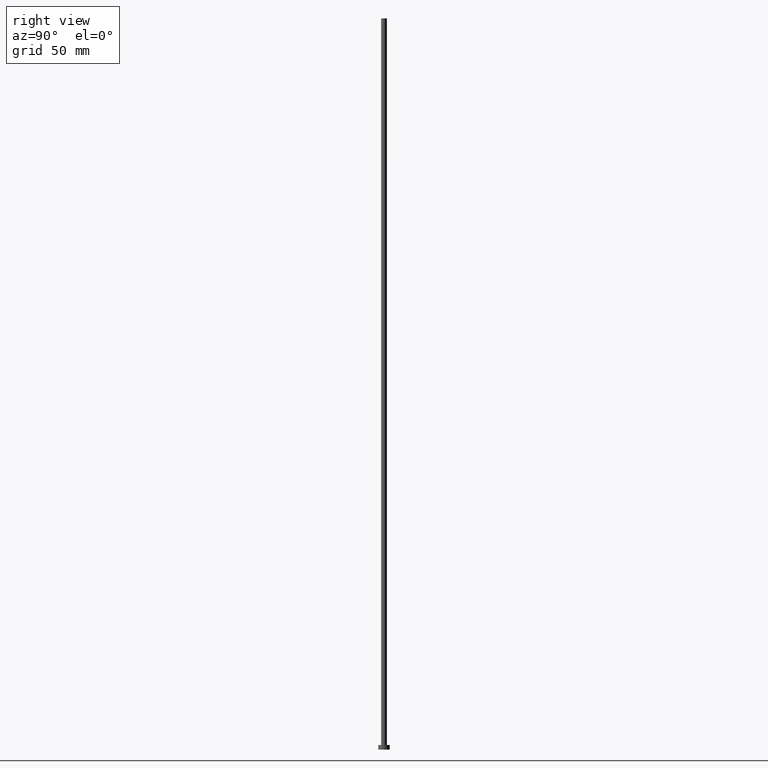
[diagram: clean part render]
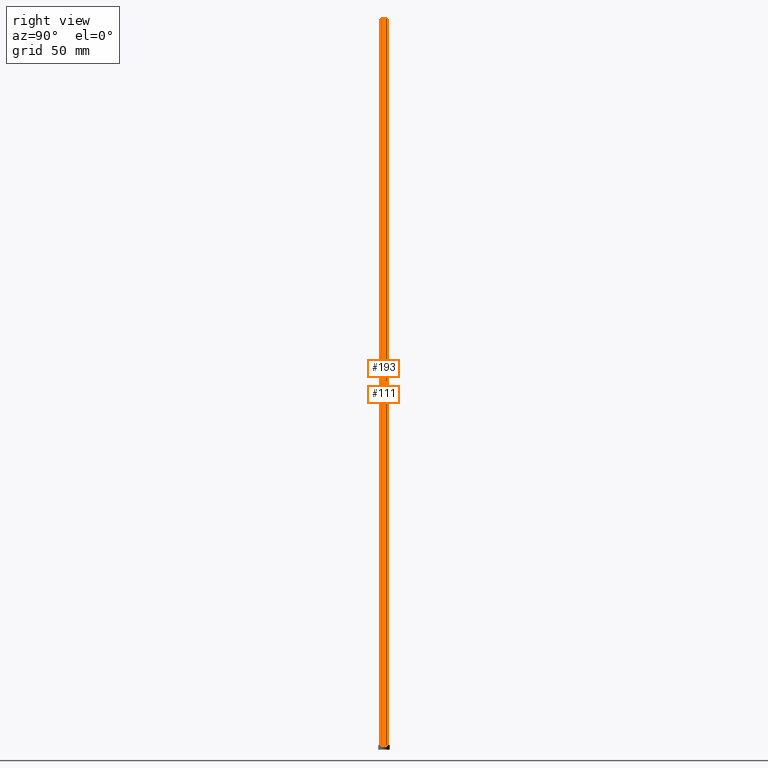
[diagram: same view with one multi-face feature highlighted, each face labeled with its STEP entity id]
A machine part, right view. The highlighted faces form ONE feature: a constant-radius fillet chain: 2 tangent blend faces with common blend radius 1.25 mm. The faces share edges in the B-rep.
Their STEP definitions:
[1] entity #193 (Cylinder):
#11 = EDGE_CURVE ( 'NONE', #134, #88, #37, .T. ) ;
#23 = CARTESIAN_POINT ( 'NONE',  ( 0.000000000000000000, 0.000000000000000000, 315.0000000000000000 ) ) ;
#30 = EDGE_CURVE ( 'NONE', #137, #88, #217, .T. ) ;
#31 = EDGE_CURVE ( 'NONE', #121, #137, #223, .T. ) ;
#37 = LINE ( 'NONE', #119, #43 ) ;
#42 = DIRECTION ( 'NONE',  ( -1.000000000000000000, 0.000000000000000000, 0.000000000000000000 ) ) ;
#43 = VECTOR ( 'NONE', #196, 1000.000000000000000 ) ;
#49 = DIRECTION ( 'NONE',  ( -0.000000000000000000, -0.000000000000000000, -1.000000000000000000 ) ) ;
#50 = ORIENTED_EDGE ( 'NONE', *, *, #31, .T. ) ;
#52 = ORIENTED_EDGE ( 'NONE', *, *, #11, .F. ) ;
#54 = AXIS2_PLACEMENT_3D ( 'NONE', #23, #60, #42 ) ;
#60 = DIRECTION ( 'NONE',  ( -0.000000000000000000, -0.000000000000000000, -1.000000000000000000 ) ) ;
#70 = EDGE_LOOP ( 'NONE', ( #52, #254, #50, #176 ) ) ;
#77 = AXIS2_PLACEMENT_3D ( 'NONE', #189, #224, #172 ) ;
#88 = VERTEX_POINT ( 'NONE', #210 ) ;
#115 = AXIS2_PLACEMENT_3D ( 'NONE', #180, #238, #122 ) ;
#119 = CARTESIAN_POINT ( 'NONE',  ( 1.250000000000000000, 1.530808498934191571E-16, 315.0000000000000000 ) ) ;
#121 = VERTEX_POINT ( 'NONE', #181 ) ;
#122 = DIRECTION ( 'NONE',  ( 1.000000000000000000, 0.000000000000000000, 0.000000000000000000 ) ) ;
#134 = VERTEX_POINT ( 'NONE', #219 ) ;
#137 = VERTEX_POINT ( 'NONE', #167 ) ;
#160 = FACE_OUTER_BOUND ( 'NONE', #70, .T. ) ;
#167 = CARTESIAN_POINT ( 'NONE',  ( -1.250000000000000000, 0.000000000000000000, 2.000000000000000000 ) ) ;
#168 = VECTOR ( 'NONE', #49, 1000.000000000000000 ) ;
#172 = DIRECTION ( 'NONE',  ( 1.000000000000000000, 0.000000000000000000, 0.000000000000000000 ) ) ;
#176 = ORIENTED_EDGE ( 'NONE', *, *, #30, .T. ) ;
#180 = CARTESIAN_POINT ( 'NONE',  ( 0.000000000000000000, 0.000000000000000000, 315.0000000000000000 ) ) ;
#181 = CARTESIAN_POINT ( 'NONE',  ( -1.250000000000000000, 0.000000000000000000, 315.0000000000000000 ) ) ;
#189 = CARTESIAN_POINT ( 'NONE',  ( 0.000000000000000000, 0.000000000000000000, 2.000000000000000000 ) ) ;
#193 = ADVANCED_FACE ( 'NONE', ( #160 ), #200, .T. ) ;
#196 = DIRECTION ( 'NONE',  ( -0.000000000000000000, -0.000000000000000000, -1.000000000000000000 ) ) ;
#200 = CYLINDRICAL_SURFACE ( 'NONE', #54, 1.250000000000000000 ) ;
#207 = CARTESIAN_POINT ( 'NONE',  ( -1.250000000000000000, 0.000000000000000000, 315.0000000000000000 ) ) ;
#210 = CARTESIAN_POINT ( 'NONE',  ( 1.250000000000000000, 1.530808498934191571E-16, 2.000000000000000000 ) ) ;
#217 = CIRCLE ( 'NONE', #77, 1.250000000000000000 ) ;
#219 = CARTESIAN_POINT ( 'NONE',  ( 1.250000000000000000, 1.530808498934191571E-16, 315.0000000000000000 ) ) ;
#223 = LINE ( 'NONE', #207, #168 ) ;
#224 = DIRECTION ( 'NONE',  ( 0.000000000000000000, 0.000000000000000000, 1.000000000000000000 ) ) ;
#235 = CIRCLE ( 'NONE', #115, 1.250000000000000000 ) ;
#238 = DIRECTION ( 'NONE',  ( 0.000000000000000000, 0.000000000000000000, 1.000000000000000000 ) ) ;
#243 = EDGE_CURVE ( 'NONE', #121, #134, #235, .T. ) ;
#254 = ORIENTED_EDGE ( 'NONE', *, *, #243, .F. ) ;
[2] entity #111 (Cylinder):
#1 = DIRECTION ( 'NONE',  ( 1.000000000000000000, 0.000000000000000000, 0.000000000000000000 ) ) ;
#11 = EDGE_CURVE ( 'NONE', #134, #88, #37, .T. ) ;
#17 = CARTESIAN_POINT ( 'NONE',  ( 0.000000000000000000, 0.000000000000000000, 2.000000000000000000 ) ) ;
#18 = EDGE_LOOP ( 'NONE', ( #19, #87, #149, #232 ) ) ;
#19 = ORIENTED_EDGE ( 'NONE', *, *, #28, .F. ) ;
#20 = CARTESIAN_POINT ( 'NONE',  ( 0.000000000000000000, 0.000000000000000000, 315.0000000000000000 ) ) ;
#28 = EDGE_CURVE ( 'NONE', #134, #121, #97, .T. ) ;
#31 = EDGE_CURVE ( 'NONE', #121, #137, #223, .T. ) ;
#32 = CYLINDRICAL_SURFACE ( 'NONE', #195, 1.250000000000000000 ) ;
#37 = LINE ( 'NONE', #119, #43 ) ;
#43 = VECTOR ( 'NONE', #196, 1000.000000000000000 ) ;
#49 = DIRECTION ( 'NONE',  ( -0.000000000000000000, -0.000000000000000000, -1.000000000000000000 ) ) ;
#58 = EDGE_CURVE ( 'NONE', #88, #137, #226, .T. ) ;
#63 = DIRECTION ( 'NONE',  ( 1.000000000000000000, 0.000000000000000000, 0.000000000000000000 ) ) ;
#87 = ORIENTED_EDGE ( 'NONE', *, *, #11, .T. ) ;
#88 = VERTEX_POINT ( 'NONE', #210 ) ;
#91 = CARTESIAN_POINT ( 'NONE',  ( 0.000000000000000000, 0.000000000000000000, 315.0000000000000000 ) ) ;
#97 = CIRCLE ( 'NONE', #202, 1.250000000000000000 ) ;
#111 = ADVANCED_FACE ( 'NONE', ( #194 ), #32, .T. ) ;
#119 = CARTESIAN_POINT ( 'NONE',  ( 1.250000000000000000, 1.530808498934191571E-16, 315.0000000000000000 ) ) ;
#121 = VERTEX_POINT ( 'NONE', #181 ) ;
#134 = VERTEX_POINT ( 'NONE', #219 ) ;
#137 = VERTEX_POINT ( 'NONE', #167 ) ;
#149 = ORIENTED_EDGE ( 'NONE', *, *, #58, .T. ) ;
#167 = CARTESIAN_POINT ( 'NONE',  ( -1.250000000000000000, 0.000000000000000000, 2.000000000000000000 ) ) ;
#168 = VECTOR ( 'NONE', #49, 1000.000000000000000 ) ;
#175 = DIRECTION ( 'NONE',  ( 0.000000000000000000, 0.000000000000000000, 1.000000000000000000 ) ) ;
#179 = DIRECTION ( 'NONE',  ( -1.000000000000000000, 0.000000000000000000, 0.000000000000000000 ) ) ;
#181 = CARTESIAN_POINT ( 'NONE',  ( -1.250000000000000000, 0.000000000000000000, 315.0000000000000000 ) ) ;
#194 = FACE_OUTER_BOUND ( 'NONE', #18, .T. ) ;
#195 = AXIS2_PLACEMENT_3D ( 'NONE', #91, #236, #179 ) ;
#196 = DIRECTION ( 'NONE',  ( -0.000000000000000000, -0.000000000000000000, -1.000000000000000000 ) ) ;
#202 = AXIS2_PLACEMENT_3D ( 'NONE', #20, #175, #1 ) ;
#207 = CARTESIAN_POINT ( 'NONE',  ( -1.250000000000000000, 0.000000000000000000, 315.0000000000000000 ) ) ;
#210 = CARTESIAN_POINT ( 'NONE',  ( 1.250000000000000000, 1.530808498934191571E-16, 2.000000000000000000 ) ) ;
#219 = CARTESIAN_POINT ( 'NONE',  ( 1.250000000000000000, 1.530808498934191571E-16, 315.0000000000000000 ) ) ;
#223 = LINE ( 'NONE', #207, #168 ) ;
#226 = CIRCLE ( 'NONE', #253, 1.250000000000000000 ) ;
#232 = ORIENTED_EDGE ( 'NONE', *, *, #31, .F. ) ;
#236 = DIRECTION ( 'NONE',  ( -0.000000000000000000, -0.000000000000000000, -1.000000000000000000 ) ) ;
#246 = DIRECTION ( 'NONE',  ( 0.000000000000000000, 0.000000000000000000, 1.000000000000000000 ) ) ;
#253 = AXIS2_PLACEMENT_3D ( 'NONE', #17, #246, #63 ) ;